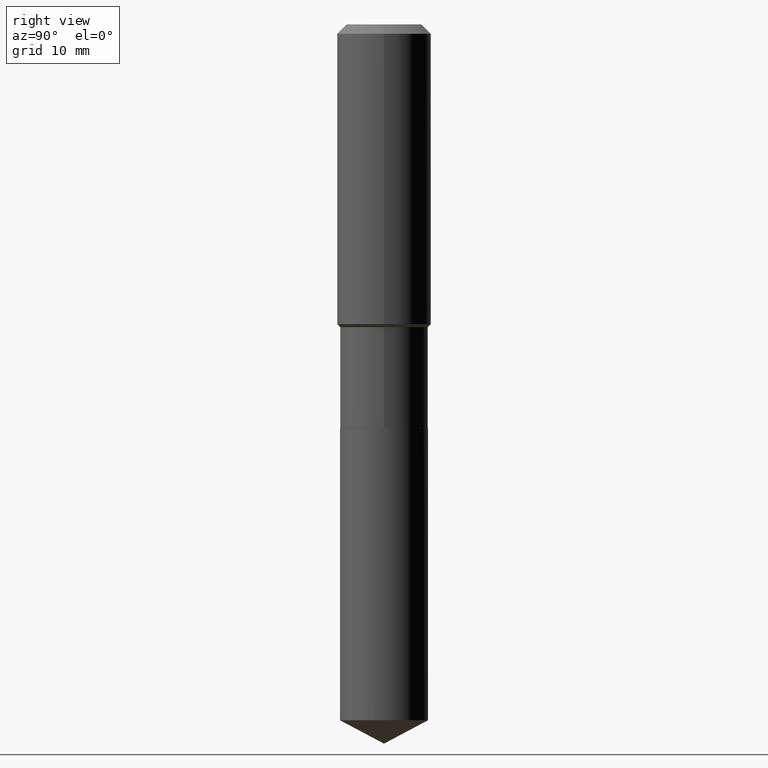
[diagram: clean part render]
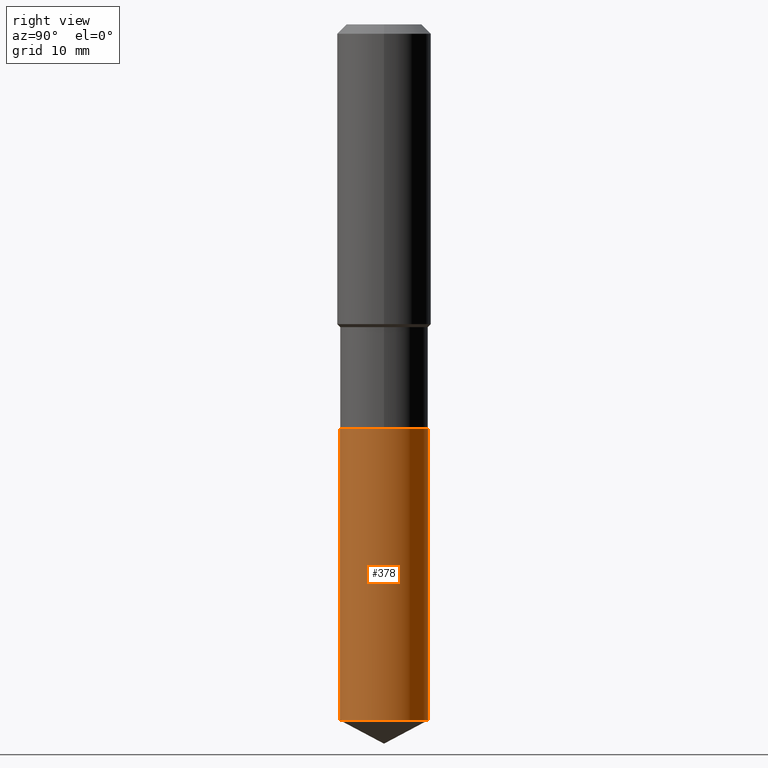
[diagram: same view with one face highlighted and labeled with its STEP entity id]
A machine part, right view. The second image highlights one B-rep face of the part: STEP entity #378.
In plain terms, the highlighted cylindrical surface (partial cylindrical patch) has radius 6.5481 mm, axis along (-0, 0, 1).
Its self-contained STEP definition (entity closure, byte-faithful):
#11 = CARTESIAN_POINT ( 'NONE',  ( 5.785979195434034596E-29, -8.260844847702884631E-15, -2.366000000000000547 ) ) ;
#12 = EDGE_CURVE ( 'NONE', #178, #260, #305, .T. ) ;
#23 = CARTESIAN_POINT ( 'NONE',  ( 1.831779172789595679E-15, 0.2577999999999917025, -2.366000000000000991 ) ) ;
#32 = CYLINDRICAL_SURFACE ( 'NONE', #349, 0.2577999999999999736 ) ;
#39 = ORIENTED_EDGE ( 'NONE', *, *, #12, .T. ) ;
#92 = DIRECTION ( 'NONE',  ( -2.445567243636616397E-29, 3.491340370809915190E-15, 1.000000000000000000 ) ) ;
#102 = LINE ( 'NONE', #23, #135 ) ;
#103 = EDGE_LOOP ( 'NONE', ( #39, #209, #448, #360 ) ) ;
#130 = LINE ( 'NONE', #276, #194 ) ;
#135 = VECTOR ( 'NONE', #484, 39.37007874015748143 ) ;
#153 = DIRECTION ( 'NONE',  ( -2.445567243636616117E-29, 3.491340370809915190E-15, 1.000000000000000000 ) ) ;
#156 = AXIS2_PLACEMENT_3D ( 'NONE', #266, #153, #273 ) ;
#178 = VERTEX_POINT ( 'NONE', #350 ) ;
#194 = VECTOR ( 'NONE', #92, 39.37007874015748143 ) ;
#201 = EDGE_CURVE ( 'NONE', #353, #369, #295, .T. ) ;
#209 = ORIENTED_EDGE ( 'NONE', *, *, #302, .T. ) ;
#213 = AXIS2_PLACEMENT_3D ( 'NONE', #11, #361, #425 ) ;
#215 = CARTESIAN_POINT ( 'NONE',  ( 5.785979195434034596E-29, -8.260844847702884631E-15, -2.366000000000000547 ) ) ;
#243 = EDGE_CURVE ( 'NONE', #178, #353, #130, .T. ) ;
#260 = VERTEX_POINT ( 'NONE', #282 ) ;
#266 = CARTESIAN_POINT ( 'NONE',  ( 9.966738292112629474E-29, -1.422937957225190381E-14, -4.075525308517671697 ) ) ;
#273 = DIRECTION ( 'NONE',  ( -6.982962677686265922E-15, -1.000000000000000000, 4.238709066973255853E-15 ) ) ;
#276 = CARTESIAN_POINT ( 'NONE',  ( -1.800207778307461580E-15, -0.2578000000000082448, -2.365999999999999659 ) ) ;
#282 = CARTESIAN_POINT ( 'NONE',  ( 1.831779172789638277E-15, 0.2577999999999858183, -4.075525308517672585 ) ) ;
#288 = CARTESIAN_POINT ( 'NONE',  ( 1.831779172789637883E-15, 0.2577999999999917025, -2.366000000000000991 ) ) ;
#295 = CIRCLE ( 'NONE', #213, 0.2577999999999999736 ) ;
#298 = CARTESIAN_POINT ( 'NONE',  ( -1.800207778307461580E-15, -0.2578000000000082448, -2.365999999999999659 ) ) ;
#302 = EDGE_CURVE ( 'NONE', #260, #369, #102, .T. ) ;
#305 = CIRCLE ( 'NONE', #156, 0.2577999999999999736 ) ;
#334 = DIRECTION ( 'NONE',  ( -2.445567243636616117E-29, 3.491340370809915190E-15, 1.000000000000000000 ) ) ;
#349 = AXIS2_PLACEMENT_3D ( 'NONE', #215, #334, #444 ) ;
#350 = CARTESIAN_POINT ( 'NONE',  ( -1.800207778307420165E-15, -0.2578000000000142955, -4.075525308517669920 ) ) ;
#353 = VERTEX_POINT ( 'NONE', #298 ) ;
#360 = ORIENTED_EDGE ( 'NONE', *, *, #243, .F. ) ;
#361 = DIRECTION ( 'NONE',  ( -2.445567243636616117E-29, 3.491340370809915190E-15, 1.000000000000000000 ) ) ;
#369 = VERTEX_POINT ( 'NONE', #288 ) ;
#378 = ADVANCED_FACE ( 'NONE', ( #407 ), #32, .T. ) ;
#407 = FACE_OUTER_BOUND ( 'NONE', #103, .T. ) ;
#425 = DIRECTION ( 'NONE',  ( -6.982962677686265922E-15, -1.000000000000000000, 3.179031800229941890E-15 ) ) ;
#444 = DIRECTION ( 'NONE',  ( -6.982962677686265922E-15, -1.000000000000000000, 3.179031800229941890E-15 ) ) ;
#448 = ORIENTED_EDGE ( 'NONE', *, *, #201, .F. ) ;
#484 = DIRECTION ( 'NONE',  ( -2.445567243636616397E-29, 3.491340370809915190E-15, 1.000000000000000000 ) ) ;